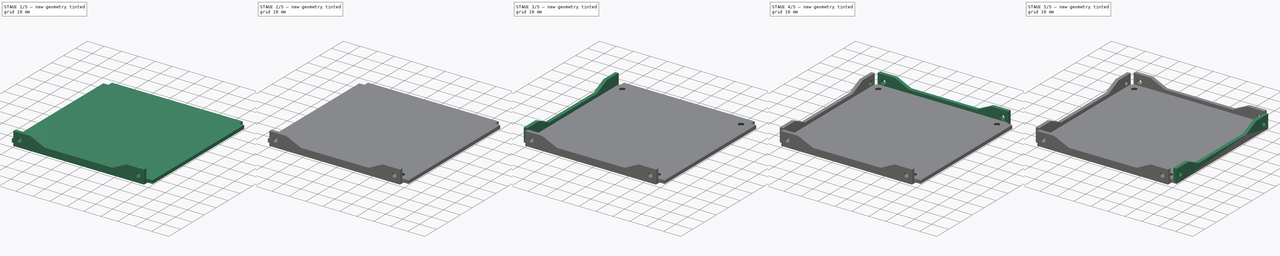
[diagram: build sequence overview — one tinted view per stage of 5, left to right]
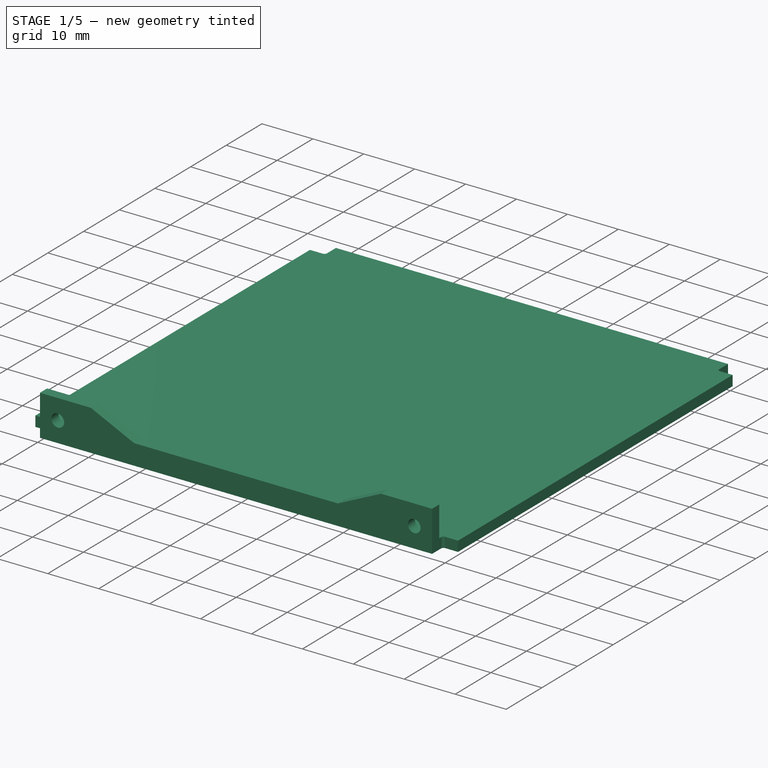
[diagram: stage 1 of 5 — iso view after this stage's code; geometry added in this stage tinted green]
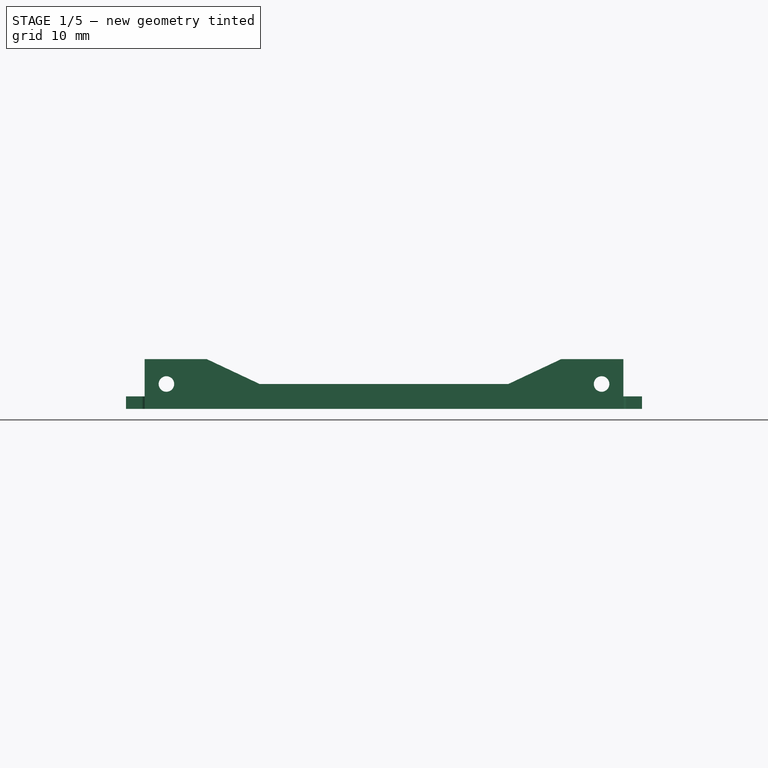
[diagram: stage 1 of 5 — front view after this stage's code; geometry added in this stage tinted green]
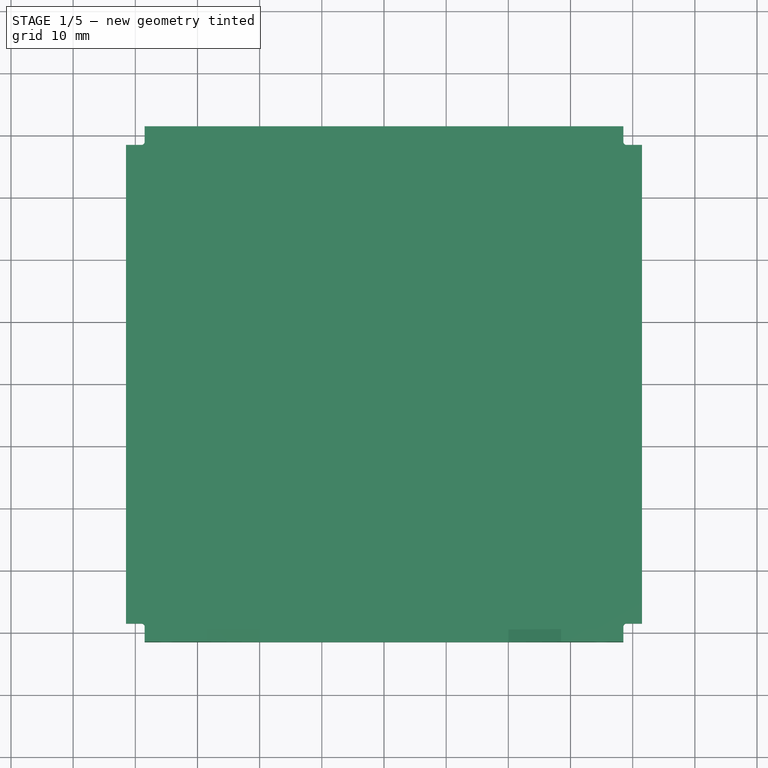
[diagram: stage 1 of 5 — top view after this stage's code; geometry added in this stage tinted green]
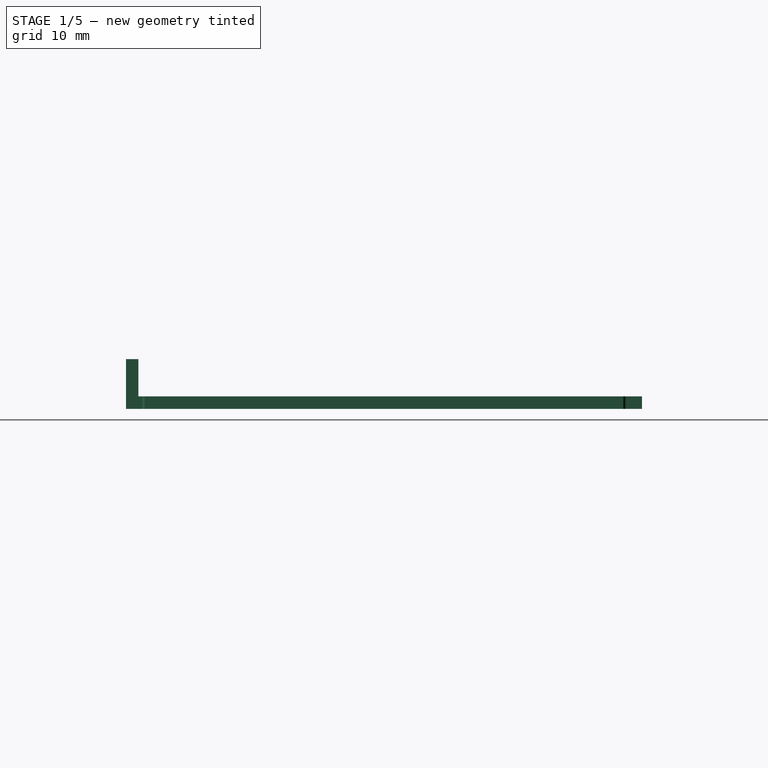
[diagram: stage 1 of 5 — right view after this stage's code; geometry added in this stage tinted green]
FCSTD DOCUMENT  (FreeCAD 0.16R6710 (Git))
Label: tapa2
License: All rights reserved
LicenseURL: http://en.wikipedia.org/wiki/All_rights_reserved
objects: Sketcher::SketchObject×17, PartDesign::Pad×5, Part::Loft×4, Part::Cut×4, PartDesign::Pocket×4, Part::MultiFuse×4
note: 47 computed .brp shape members not serialized (recipe doc carries the construction recipe); baked Part::Feature solids carry a one-line shape summary decoded from their .brp

FEATURE [Sketcher::SketchObject] Sketch
  sketch-geometry (16):
    g0: LineSegment StartX=-41.5 StartY=-38.5 StartZ=0 EndX=-41.5 EndY=38.5 EndZ=0
    g1: LineSegment StartX=-38.5 StartY=-41.5 StartZ=0 EndX=38.5 EndY=-41.5 EndZ=0
    g2: LineSegment StartX=-38.5 StartY=41.5 StartZ=0 EndX=38.5 EndY=41.5 EndZ=0
    g3: LineSegment StartX=41.5 StartY=38.5 StartZ=0 EndX=41.5 EndY=-38.5 EndZ=0
    g4: ArcOfCircle CenterX=-39 CenterY=39 CenterZ=0 NormalX=0 NormalY=0 NormalZ=1 Radius=0.5 StartAngle=4.71507 EndAngle=6.28318
    g5: LineSegment StartX=-38.5 StartY=39 StartZ=0 EndX=-38.5 EndY=41.5 EndZ=0
    g6: LineSegment StartX=-38.9987 StartY=38.5 StartZ=0 EndX=-41.5 EndY=38.5 EndZ=0
    g7: ArcOfCircle CenterX=39 CenterY=39 CenterZ=0 NormalX=0 NormalY=0 NormalZ=1 Radius=0.5 StartAngle=3.14159 EndAngle=4.70971
    g8: LineSegment StartX=38.5 StartY=41.5 StartZ=0 EndX=38.5 EndY=39 EndZ=0
    g9: LineSegment StartX=38.9987 StartY=38.5 StartZ=0 EndX=41.5 EndY=38.5 EndZ=0
    g10: ArcOfCircle CenterX=-39 CenterY=-38.9986 CenterZ=0 NormalX=0 NormalY=0 NormalZ=1 Radius=0.5 StartAngle=6.28296 EndAngle=7.78022
    g11: LineSegment StartX=-38.9632 StartY=-38.5 StartZ=0 EndX=-41.5 EndY=-38.5 EndZ=0
    g12: LineSegment StartX=-38.5 StartY=-38.9988 StartZ=0 EndX=-38.5 EndY=-41.5 EndZ=0
    g13: ArcOfCircle CenterX=39 CenterY=-39 CenterZ=0 NormalX=0 NormalY=0 NormalZ=1 Radius=0.5 StartAngle=1.5708 EndAngle=3.14159
    g14: LineSegment StartX=39 StartY=-38.5 StartZ=0 EndX=41.5 EndY=-38.5 EndZ=0
    g15: LineSegment StartX=38.5 StartY=-39 StartZ=0 EndX=38.5 EndY=-41.5 EndZ=0
  constraints (48):
    c: Radius(g4) = 0.5
    c: Vertical(g5)
    c: Horizontal(g6)
    c: Coincident(g4,g6)
    c: Coincident(g4,g5)
    c: Radius(g7) = 0.5
    c: Vertical(g8)
    c: Horizontal(g9)
    c: Coincident(g7,g8)
    c: Coincident(g7,g9)
    c: Coincident(g2,g8)
    c: Coincident(g5,g2)
    c: DistanceX(g2,g2) = 77
    c: Radius(g10) = 0.5
    c: Horizontal(g11)
    c: Vertical(g12)
    c: Coincident(g10,g12)
    c: Coincident(g10,g11)
    c: Coincident(g0,g11)
    c: DistanceX(g6,g2) = 3
    c: DistanceY(g6,g2) = 3
    c: DistanceY(g12,g0) = 3
    c: Coincident(g0,g6)
    c: DistanceY(g0,g0) = 77
    c: DistanceX(g0,g12) = 3
    c: Coincident(g3,g9)
    c: DistanceX(g2,g3) = 3
    c: DistanceY(g3,g2) = 3
    c: Coincident(g12,g1)
    c: DistanceX(g1,g1) = 77
    c: DistanceY(g3,g3) = 77
    c: Symmetric(g1,g2,g-1)
    c: Symmetric(g3,g3,g-1)
    c: Symmetric(g2,g1,g-1)
    c: Symmetric(g0,g0,g-1)
    c: Symmetric(g1,g1,g-2)
    c: Symmetric(g0,g3,g-2)
    c: Symmetric(g0,g3,g-2)
    c: Symmetric(g2,g2,g-2)
    c: Radius(g13) = 0.5
    c: Horizontal(g14)
    c: Vertical(g15)
    c: Coincident(g14,g3)
    c: Coincident(g15,g1)
    c: Coincident(g13,g14)
    c: Coincident(g13,g15)
    c: DistanceX(g1,g3) = 3
    c: DistanceY(g1,g3) = 3
FEATURE [PartDesign::Pad] Pad
  Length = 2
  Length2 = 100
  Sketch = -> Sketch
  Type = 0
FEATURE [Sketcher::SketchObject] Sketch001
  sketch-geometry (1):
    g0: Circle CenterX=-35 CenterY=-35 CenterZ=0 NormalX=0 NormalY=0 NormalZ=1 Radius=3
  constraints (1):
    c: Radius(g0) = 3
FEATURE [Sketcher::SketchObject] Sketch002
  Placement = pos=(0,0,2) rot=(0,0,1;0rad)
  sketch-geometry (1):
    g0: Circle CenterX=-35 CenterY=-35 CenterZ=0 NormalX=0 NormalY=0 NormalZ=1 Radius=1.5
  constraints (3):
    c: Radius(g0) = 1.5
    c: DistanceY(g0,g-1) = 35
    c: DistanceX(g0,g-1) = 35
FEATURE [Part::Loft] Loft
  Closed = false
  Ruled = true
  Sections = -> [Sketch001,Sketch002]
  Solid = true
FEATURE [PartDesign::Pad] Pad001
  Length = 2
  Length2 = 100
  Placement = pos=(0,-39.5,0) rot=(-1,0,0;4.71239rad)
  Sketch = -> Sketch009
  Type = 0
FEATURE [Sketcher::SketchObject] Sketch017
  Placement = pos=(0,-41.5,0) rot=(1,0,0;1.5708rad)
  Support = -> Pad001 [Face10]
  sketch-geometry (2):
    g0: Circle CenterX=-35 CenterY=4 CenterZ=0 NormalX=0 NormalY=0 NormalZ=1 Radius=1.25
    g1: Circle CenterX=35 CenterY=4 CenterZ=0 NormalX=0 NormalY=0 NormalZ=1 Radius=1.25
  constraints (5):
    c: Equal(g1,g0)
    c: Radius(g1) = 1.25
    c: Symmetric(g0,g1,g-2)
    c: DistanceX(g0,g-1) = 35
    c: DistanceY(g-1,g0) = 4
FEATURE [PartDesign::Pocket] Pocket
  Length = 5
  Placement = pos=(0,-39.5,0) rot=(-1,0,0;4.71239rad)
  Sketch = -> Sketch017
  Type = 1
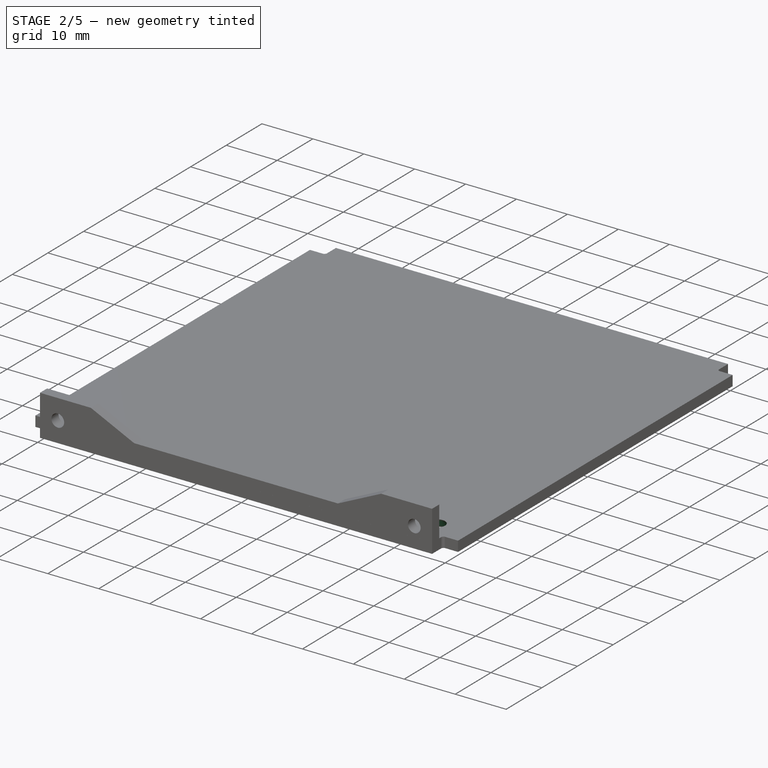
[diagram: stage 2 of 5 — iso view after this stage's code; geometry added in this stage tinted green]
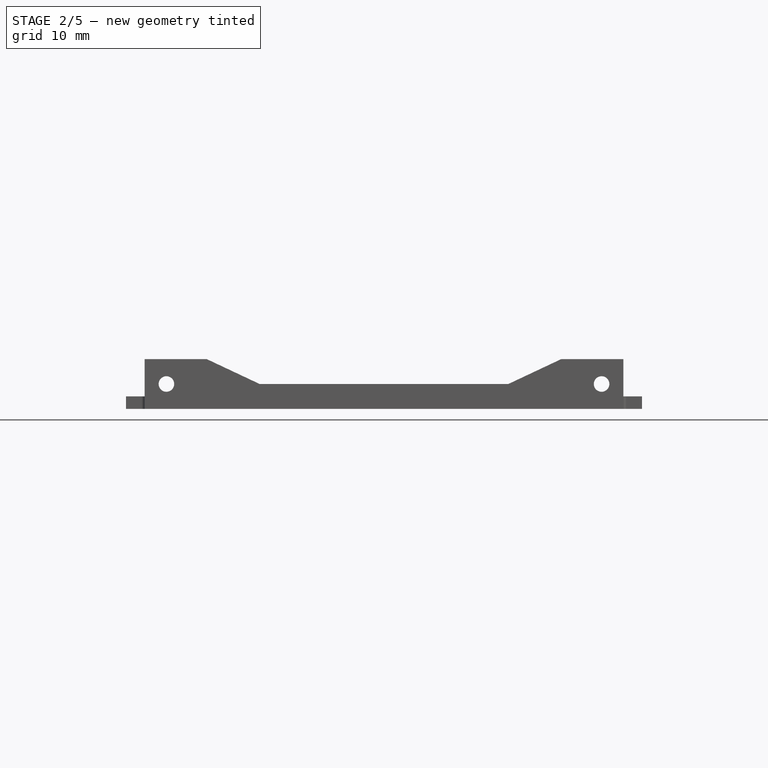
[diagram: stage 2 of 5 — front view after this stage's code; geometry added in this stage tinted green]
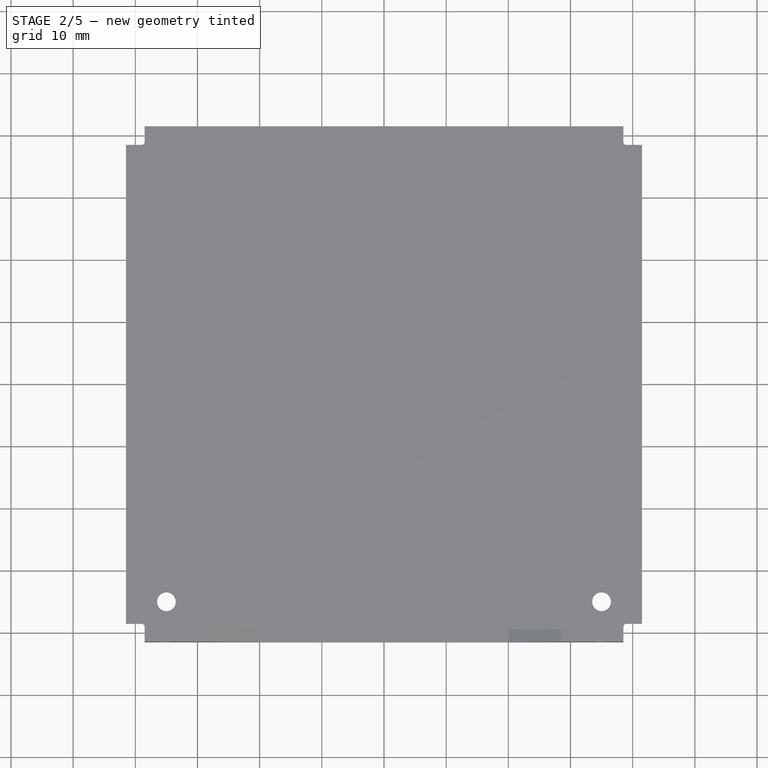
[diagram: stage 2 of 5 — top view after this stage's code; geometry added in this stage tinted green]
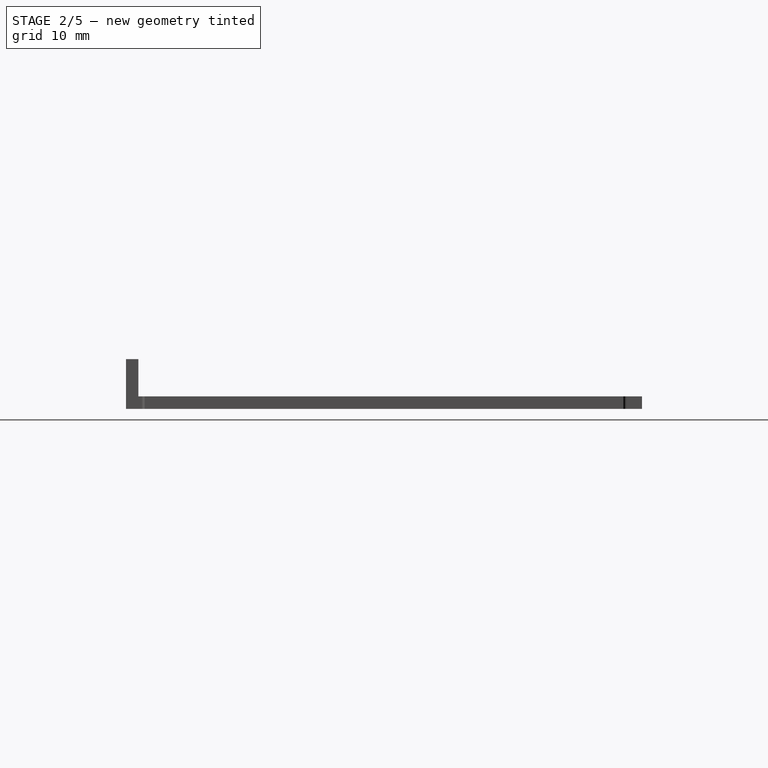
[diagram: stage 2 of 5 — right view after this stage's code; geometry added in this stage tinted green]
FEATURE [Sketcher::SketchObject] Sketch003
  sketch-geometry (1):
    g0: Circle CenterX=35 CenterY=-35 CenterZ=0 NormalX=0 NormalY=0 NormalZ=1 Radius=3
  constraints (3):
    c: Radius(g0) = 3
    c: DistanceX(g-1,g0) = 35
    c: DistanceY(g0,g-1) = 35
FEATURE [Sketcher::SketchObject] Sketch004
  Placement = pos=(0,0,2) rot=(0,0,1;0rad)
  sketch-geometry (1):
    g0: Circle CenterX=35 CenterY=-35 CenterZ=0 NormalX=0 NormalY=0 NormalZ=1 Radius=1.5
  constraints (3):
    c: Radius(g0) = 1.5
    c: DistanceX(g-1,g0) = 35
    c: DistanceY(g0,g-1) = 35
FEATURE [Part::Loft] Loft001
  Closed = false
  Ruled = true
  Sections = -> [Sketch003,Sketch004]
  Solid = true
FEATURE [Sketcher::SketchObject] Sketch005
  sketch-geometry (1):
    g0: Circle CenterX=-35 CenterY=35 CenterZ=0 NormalX=0 NormalY=0 NormalZ=1 Radius=3
  constraints (3):
    c: Radius(g0) = 3
    c: DistanceY(g-1,g0) = 35
    c: DistanceX(g0,g-1) = 35
FEATURE [Sketcher::SketchObject] Sketch006
  Placement = pos=(0,0,2) rot=(0,0,1;0rad)
  sketch-geometry (1):
    g0: Circle CenterX=-35 CenterY=35 CenterZ=0 NormalX=0 NormalY=0 NormalZ=1 Radius=1.5
  constraints (3):
    c: Radius(g0) = 1.5
    c: DistanceY(g-1,g0) = 35
    c: DistanceX(g0,g-1) = 35
FEATURE [Part::Loft] Loft002
  Closed = false
  Ruled = true
  Sections = -> [Sketch005,Sketch006]
  Solid = true
FEATURE [Sketcher::SketchObject] Sketch009
  Placement = pos=(0,-39.5,0) rot=(-1,0,0;4.71239rad)
  sketch-geometry (9):
    g0: LineSegment StartX=-38.5 StartY=-1.549e-08 StartZ=0 EndX=38.5 EndY=-1.549e-08 EndZ=0
    g1: LineSegment StartX=38.5 StartY=-1.549e-08 StartZ=0 EndX=38.5 EndY=8 EndZ=0
    g2: LineSegment StartX=-38.5 StartY=7.99991 StartZ=0 EndX=-38.5 EndY=8 EndZ=0
    g3: LineSegment StartX=-38.5 StartY=8 StartZ=0 EndX=-38.5 EndY=-1.549e-08 EndZ=0
    g4: LineSegment StartX=38.5 StartY=8 StartZ=0 EndX=28.5 EndY=8 EndZ=0
    g5: LineSegment StartX=28.5 StartY=8 StartZ=0 EndX=20 EndY=4 EndZ=0
    g6: LineSegment StartX=20 StartY=4 StartZ=0 EndX=-20 EndY=4 EndZ=0
    g7: LineSegment StartX=-20 StartY=4 StartZ=0 EndX=-28.5 EndY=7.99991 EndZ=0
    g8: LineSegment StartX=-28.5 StartY=7.99991 StartZ=0 EndX=-38.5 EndY=7.99991 EndZ=0
  constraints (26):
    c: Horizontal(g0)
    c: Coincident(g0,g1)
    c: Vertical(g1)
    c: Coincident(g2,g3)
    c: Coincident(g3,g0)
    c: Vertical(g3)
    c: Equal(g3,g1)
    c: DistanceY(g0,g1) = 8
    c: Symmetric(g0,g0,g-2)
    c: PointOnObject(g0,g-1)
    c: DistanceX(g-1,g0) = 38.5
    c: Symmetric(g2,g1,g-2)
    c: Coincident(g1,g4)
    c: Horizontal(g4)
    c: Coincident(g4,g5)
    c: Coincident(g5,g6)
    c: Horizontal(g6)
    c: Coincident(g6,g7)
    c: Coincident(g7,g8)
    c: Coincident(g8,g2)
    c: Horizontal(g8)
    c: Symmetric(g5,g6,g-2)
    c: Symmetric(g4,g7,g-2)
    c: DistanceX(g4,g4) = 10
    c: DistanceX(g-1,g5) = 20
    c: DistanceY(g-1,g5) = 4
FEATURE [Sketcher::SketchObject] Sketch010
  Placement = pos=(0,41.5,0) rot=(1,0,0;1.5708rad)
  sketch-geometry (8):
    g0: LineSegment StartX=-38.5 StartY=0 StartZ=0 EndX=38.5 EndY=0 EndZ=0
    g1: LineSegment StartX=38.5 StartY=0 StartZ=0 EndX=38.5 EndY=8 EndZ=0
    g2: LineSegment StartX=-38.5 StartY=8 StartZ=0 EndX=-38.5 EndY=0 EndZ=0
    g3: LineSegment StartX=38.5 StartY=8 StartZ=0 EndX=28.5 EndY=8 EndZ=0
    g4: LineSegment StartX=28.5 StartY=8 StartZ=0 EndX=20 EndY=4 EndZ=0
    g5: LineSegment StartX=20 StartY=4 StartZ=0 EndX=-20 EndY=4 EndZ=0
    g6: LineSegment StartX=-20 StartY=4 StartZ=0 EndX=-28.5 EndY=8 EndZ=0
    g7: LineSegment StartX=-28.5 StartY=8 StartZ=0 EndX=-38.5 EndY=8 EndZ=0
  constraints (23):
    c: Coincident(g0,g1)
    c: Vertical(g1)
    c: Coincident(g2,g0)
    c: Vertical(g2)
    c: Equal(g2,g1)
    c: Symmetric(g0,g0,g-2)
    c: PointOnObject(g0,g-1)
    c: Coincident(g1,g3)
    c: Horizontal(g3)
    c: Coincident(g3,g4)
    c: Coincident(g4,g5)
    c: Horizontal(g5)
    c: Coincident(g5,g6)
    c: Coincident(g6,g7)
    c: Coincident(g7,g2)
    c: Horizontal(g7)
    c: Symmetric(g3,g6,g-2)
    c: Symmetric(g4,g5,g-2)
    c: DistanceX(g-1,g0) = 38.5
    c: DistanceY(g0,g1) = 8
    c: DistanceX(g-1,g4) = 20
    c: DistanceX(g3,g3) = 10
    c: DistanceY(g-1,g4) = 4
FEATURE [Sketcher::SketchObject] Sketch011
  Placement = pos=(39.5,0,0) rot=(0.57735,0.57735,0.57735;2.0944rad)
  sketch-geometry (8):
    g0: LineSegment StartX=-38.5 StartY=0 StartZ=0 EndX=38.5 EndY=0 EndZ=0
    g1: LineSegment StartX=38.5 StartY=0 StartZ=0 EndX=38.5 EndY=8 EndZ=0
    g2: LineSegment StartX=-38.5 StartY=8 StartZ=0 EndX=-38.5 EndY=0 EndZ=0
    g3: LineSegment StartX=38.5 StartY=8 StartZ=0 EndX=28.5 EndY=8 EndZ=0
    g4: LineSegment StartX=28.5 StartY=8 StartZ=0 EndX=20 EndY=4 EndZ=0
    g5: LineSegment StartX=20 StartY=4 StartZ=0 EndX=-20 EndY=4 EndZ=0
    g6: LineSegment StartX=-20 StartY=4 StartZ=0 EndX=-28.5 EndY=8 EndZ=0
    g7: LineSegment StartX=-28.5 StartY=8 StartZ=0 EndX=-38.5 EndY=8 EndZ=0
  constraints (23):
    c: Coincident(g0,g1)
    c: Vertical(g1)
    c: Coincident(g2,g0)
    c: Vertical(g2)
    c: Equal(g1,g2)
    c: Symmetric(g0,g0,g-2)
    c: PointOnObject(g0,g-1)
    c: Coincident(g1,g3)
    c: Horizontal(g3)
    c: Coincident(g3,g4)
    c: Coincident(g4,g5)
    c: Horizontal(g5)
    c: Coincident(g5,g6)
    c: Coincident(g6,g7)
    c: Coincident(g7,g2)
    c: Horizontal(g7)
    c: Symmetric(g3,g6,g-2)
    c: Symmetric(g4,g5,g-2)
    c: DistanceX(g-1,g0) = 38.5
    c: DistanceY(g0,g1) = 8
    c: DistanceY(g-1,g4) = 4
    c: DistanceX(g3,g3) = 10
    c: DistanceX(g-1,g4) = 20
FEATURE [Sketcher::SketchObject] Sketch012
  Placement = pos=(-41.5,0,0) rot=(0.57735,0.57735,0.57735;2.0944rad)
  sketch-geometry (8):
    g0: LineSegment StartX=-38.5 StartY=0 StartZ=0 EndX=38.5 EndY=0 EndZ=0
    g1: LineSegment StartX=38.5 StartY=0 StartZ=0 EndX=38.5 EndY=8 EndZ=0
    g2: LineSegment StartX=-38.5 StartY=8 StartZ=0 EndX=-38.5 EndY=0 EndZ=0
    g3: LineSegment StartX=38.5 StartY=8 StartZ=0 EndX=28.5 EndY=8 EndZ=0
    g4: LineSegment StartX=28.5 StartY=8 StartZ=0 EndX=20 EndY=4 EndZ=0
    g5: LineSegment StartX=20 StartY=4 StartZ=0 EndX=-20 EndY=4 EndZ=0
    g6: LineSegment StartX=-20 StartY=4 StartZ=0 EndX=-28.5 EndY=8 EndZ=0
    g7: LineSegment StartX=-28.5 StartY=8 StartZ=0 EndX=-38.5 EndY=8 EndZ=0
  constraints (23):
    c: Coincident(g0,g1)
    c: Vertical(g1)
    c: Coincident(g2,g0)
    c: Vertical(g2)
    c: Equal(g1,g2)
    c: Symmetric(g0,g0,g-2)
    c: PointOnObject(g0,g-1)
    c: Coincident(g1,g3)
    c: Horizontal(g3)
    c: Coincident(g3,g4)
    c: Coincident(g4,g5)
    c: Horizontal(g5)
    c: Coincident(g5,g6)
    c: Coincident(g6,g7)
    c: Horizontal(g7)
    c: Coincident(g7,g2)
    c: Symmetric(g3,g6,g-2)
    c: Symmetric(g4,g5,g-2)
    c: DistanceX(g-1,g0) = 38.5
    c: DistanceY(g0,g1) = 8
    c: DistanceX(g3,g1) = 10
    c: DistanceX(g-1,g4) = 20
    c: DistanceY(g-1,g4) = 4
FEATURE [Part::Cut] Cut
  Base = -> Pad
  Tool = -> Loft
FEATURE [Part::Cut] Cut001
  Base = -> Cut
  Tool = -> Loft001
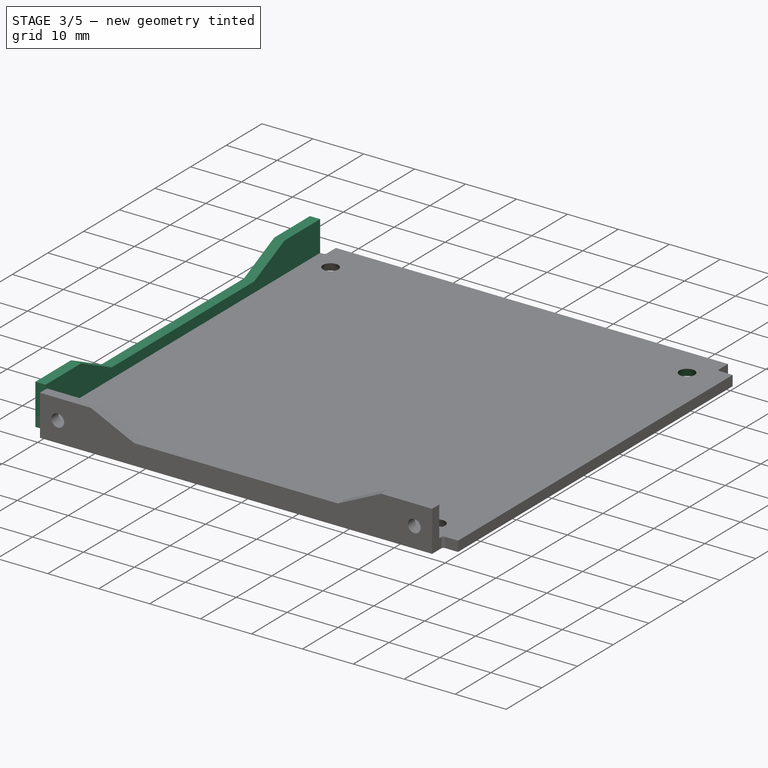
[diagram: stage 3 of 5 — iso view after this stage's code; geometry added in this stage tinted green]
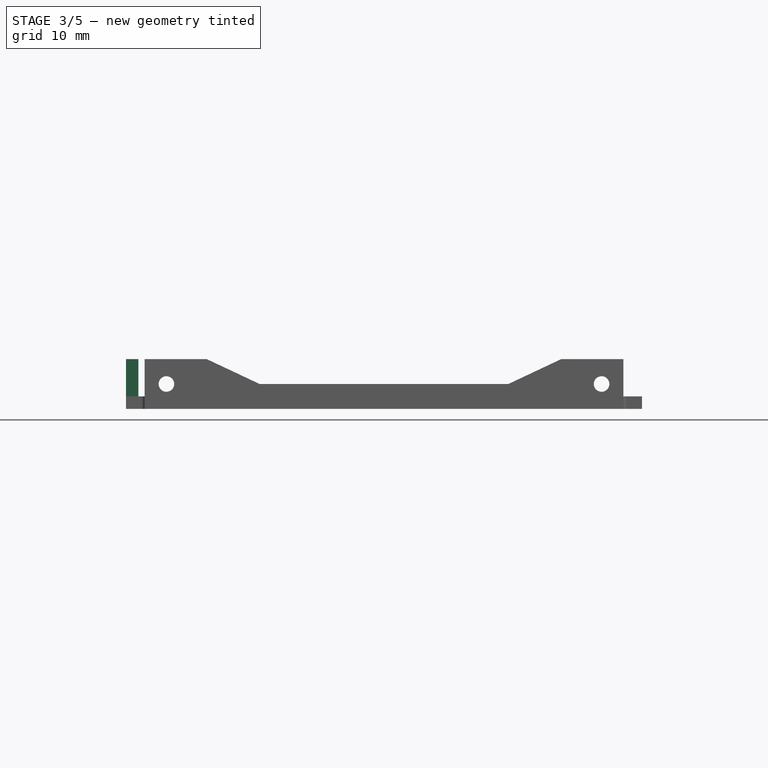
[diagram: stage 3 of 5 — front view after this stage's code; geometry added in this stage tinted green]
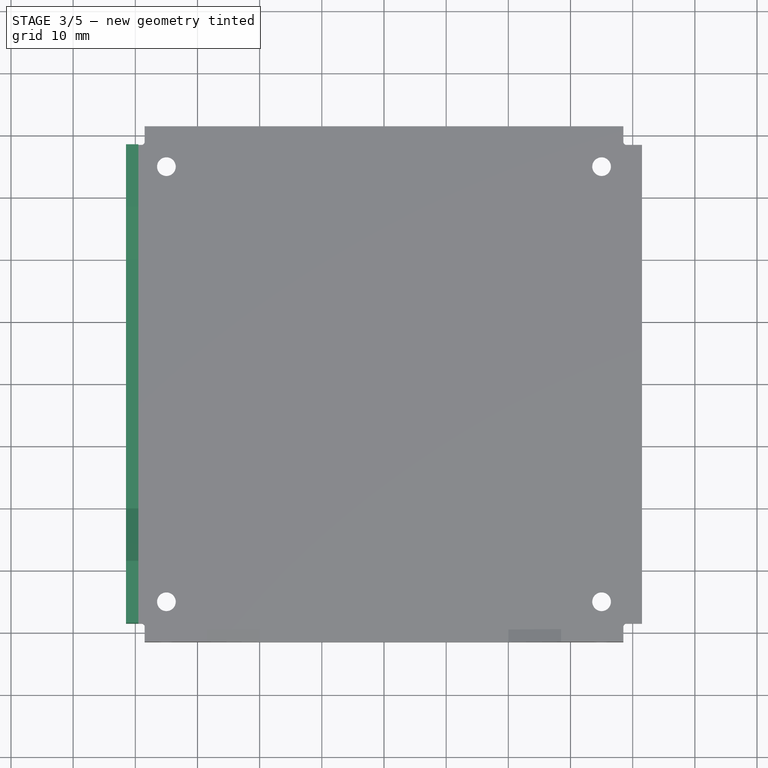
[diagram: stage 3 of 5 — top view after this stage's code; geometry added in this stage tinted green]
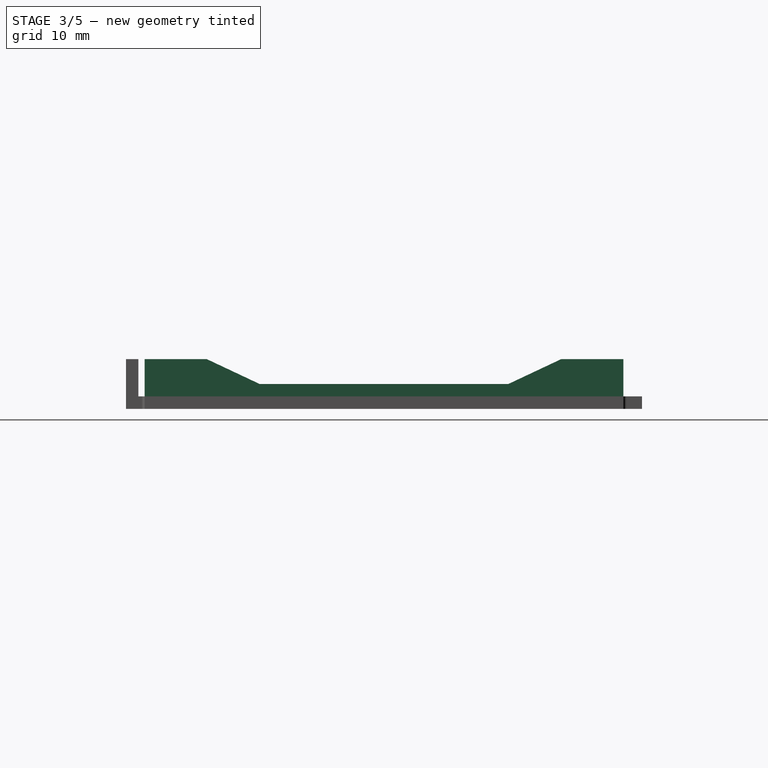
[diagram: stage 3 of 5 — right view after this stage's code; geometry added in this stage tinted green]
FEATURE [Sketcher::SketchObject] Sketch007
  sketch-geometry (1):
    g0: Circle CenterX=35 CenterY=35 CenterZ=0 NormalX=0 NormalY=0 NormalZ=1 Radius=3
  constraints (3):
    c: Radius(g0) = 3
    c: DistanceY(g-1,g0) = 35
    c: DistanceX(g-1,g0) = 35
FEATURE [Sketcher::SketchObject] Sketch008
  Placement = pos=(0,0,2) rot=(0,0,1;0rad)
  sketch-geometry (1):
    g0: Circle CenterX=35 CenterY=35 CenterZ=0 NormalX=0 NormalY=0 NormalZ=1 Radius=1.5
  constraints (3):
    c: Radius(g0) = 1.5
    c: DistanceX(g-1,g0) = 35
    c: DistanceY(g-1,g0) = 35
FEATURE [Part::Loft] Loft003
  Closed = false
  Ruled = true
  Sections = -> [Sketch007,Sketch008]
  Solid = true
FEATURE [Part::Cut] Cut002
  Base = -> Cut001
  Tool = -> Loft002
FEATURE [Part::Cut] Cut003
  Base = -> Cut002
  Tool = -> Loft003
FEATURE [PartDesign::Pad] Pad002
  Length = 2
  Length2 = 100
  Placement = pos=(-41.5,0,0) rot=(0.57735,0.57735,0.57735;2.0944rad)
  Sketch = -> Sketch012
  Type = 0
FEATURE [Part::MultiFuse] Fusion
  Shapes = -> [Cut003,Pocket]
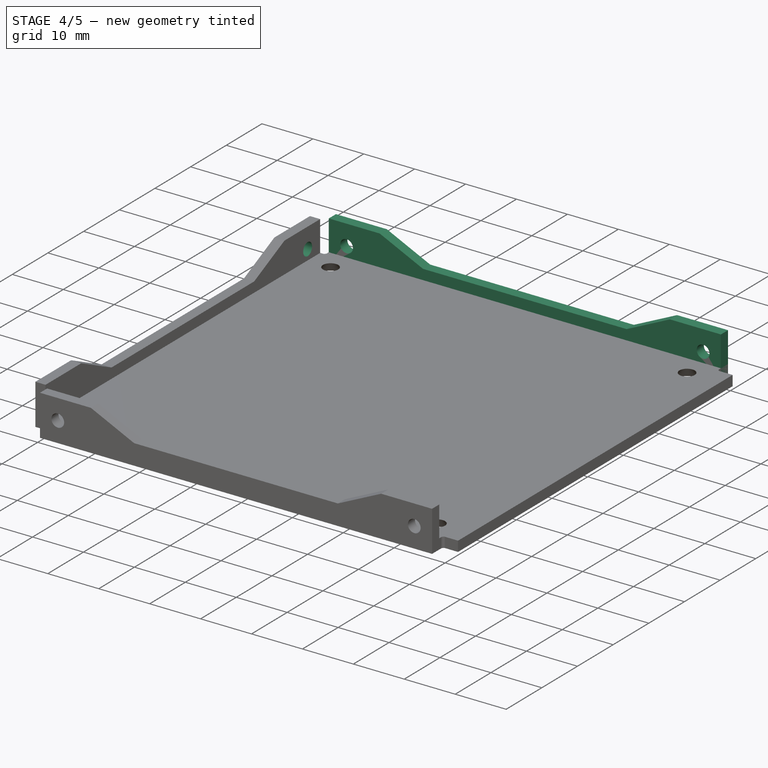
[diagram: stage 4 of 5 — iso view after this stage's code; geometry added in this stage tinted green]
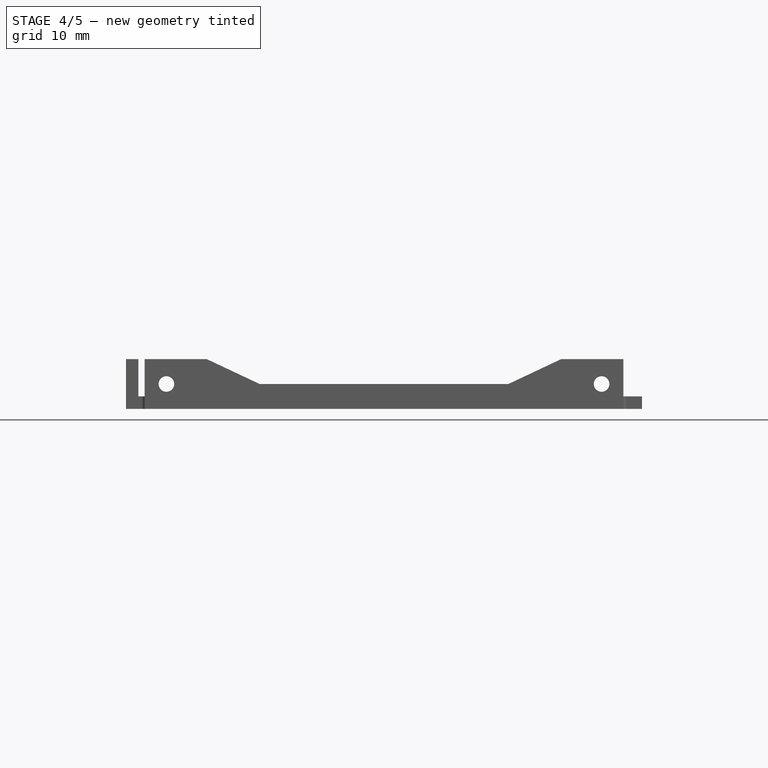
[diagram: stage 4 of 5 — front view after this stage's code; geometry added in this stage tinted green]
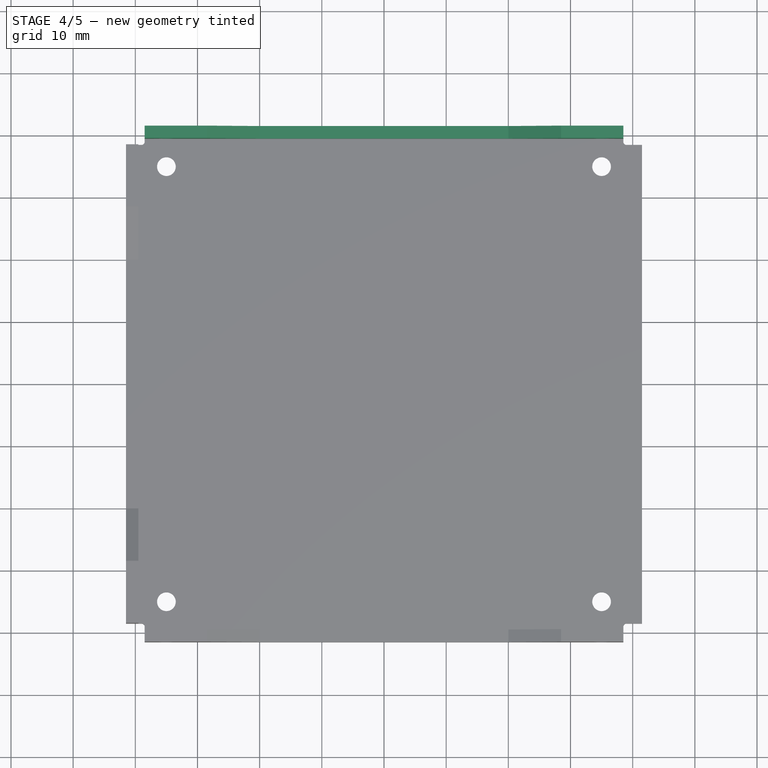
[diagram: stage 4 of 5 — top view after this stage's code; geometry added in this stage tinted green]
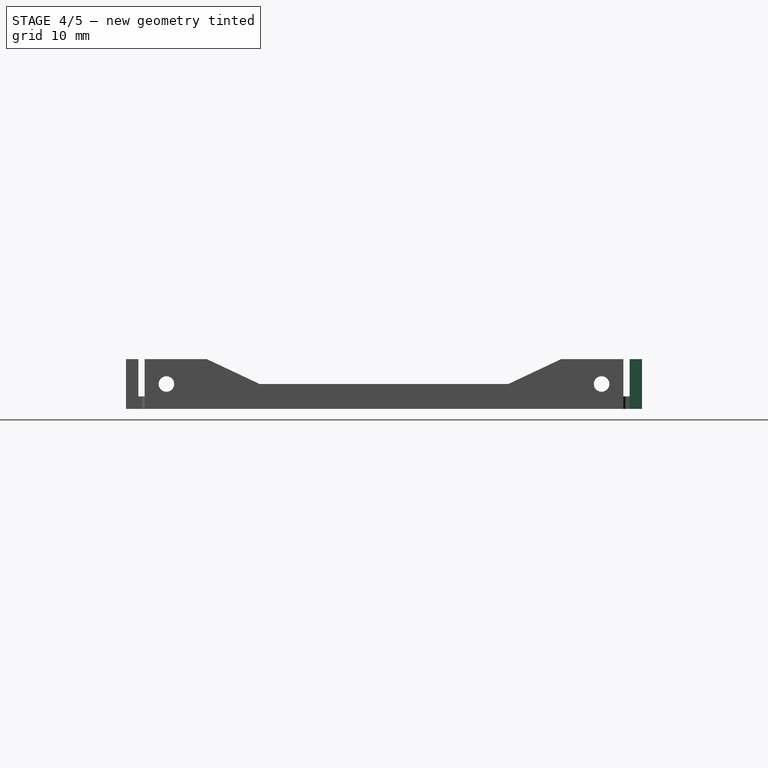
[diagram: stage 4 of 5 — right view after this stage's code; geometry added in this stage tinted green]
FEATURE [PartDesign::Pad] Pad004
  Length = 2
  Length2 = 100
  Placement = pos=(0,41.5,0) rot=(1,0,0;1.5708rad)
  Sketch = -> Sketch010
  Type = 0
FEATURE [Sketcher::SketchObject] Sketch015
  Placement = pos=(-39.5,0,0) rot=(0.57735,0.57735,0.57735;2.0944rad)
  Support = -> Pad002 [Face10]
  sketch-geometry (2):
    g0: Circle CenterX=-35 CenterY=4 CenterZ=0 NormalX=0 NormalY=0 NormalZ=1 Radius=1.25
    g1: Circle CenterX=35 CenterY=4 CenterZ=0 NormalX=0 NormalY=0 NormalZ=1 Radius=1.25
  constraints (5):
    c: Equal(g1,g0)
    c: Radius(g1) = 1.25
    c: Symmetric(g1,g0,g-2)
    c: DistanceX(g0,g-1) = 35
    c: DistanceY(g-1,g0) = 4
FEATURE [PartDesign::Pocket] Pocket002
  Length = 5
  Placement = pos=(-41.5,0,0) rot=(0.57735,0.57735,0.57735;2.0944rad)
  Sketch = -> Sketch015
  Type = 1
FEATURE [Sketcher::SketchObject] Sketch016
  Placement = pos=(0,39.5,0) rot=(1,0,0;1.5708rad)
  Support = -> Pad004 [Face10]
  sketch-geometry (2):
    g0: Circle CenterX=-35 CenterY=4 CenterZ=0 NormalX=0 NormalY=0 NormalZ=1 Radius=1.25
    g1: Circle CenterX=35 CenterY=4 CenterZ=0 NormalX=0 NormalY=0 NormalZ=1 Radius=1.25
  constraints (5):
    c: Equal(g0,g1)
    c: Radius(g1) = 1.25
    c: Symmetric(g1,g0,g-2)
    c: DistanceX(g0,g-1) = 35
    c: DistanceY(g-1,g0) = 4
FEATURE [PartDesign::Pocket] Pocket003
  Length = 5
  Placement = pos=(0,41.5,0) rot=(1,0,0;1.5708rad)
  Sketch = -> Sketch016
  Type = 1
FEATURE [Part::MultiFuse] Fusion001
  Shapes = -> [Fusion,Pocket002]
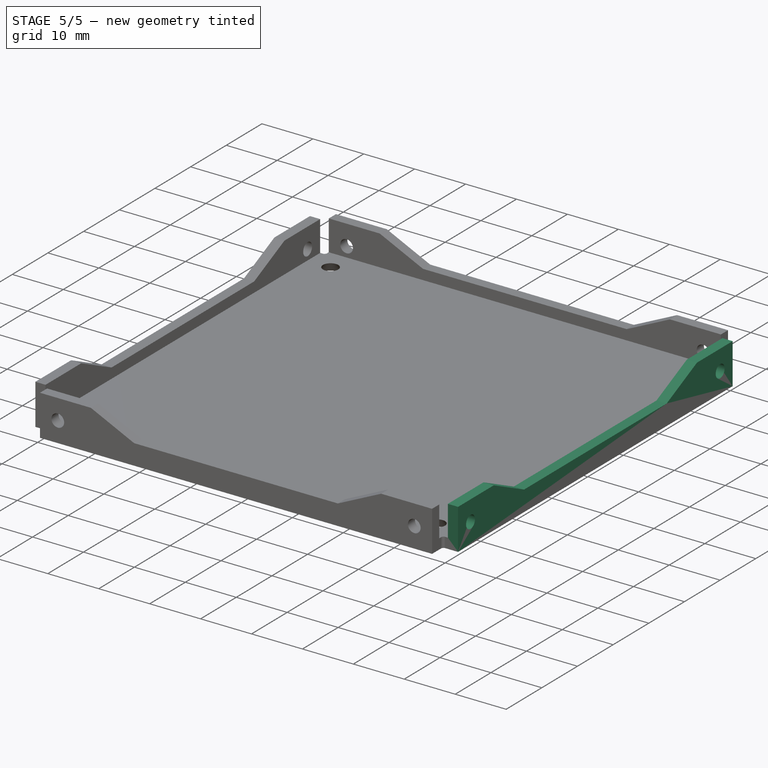
[diagram: stage 5 of 5 — iso view after this stage's code; geometry added in this stage tinted green]
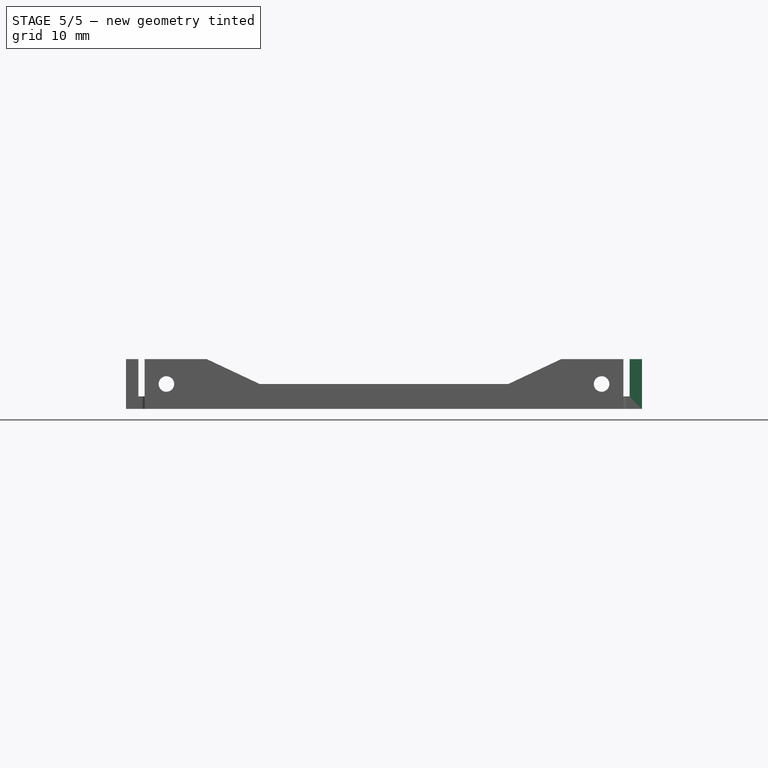
[diagram: stage 5 of 5 — front view after this stage's code; geometry added in this stage tinted green]
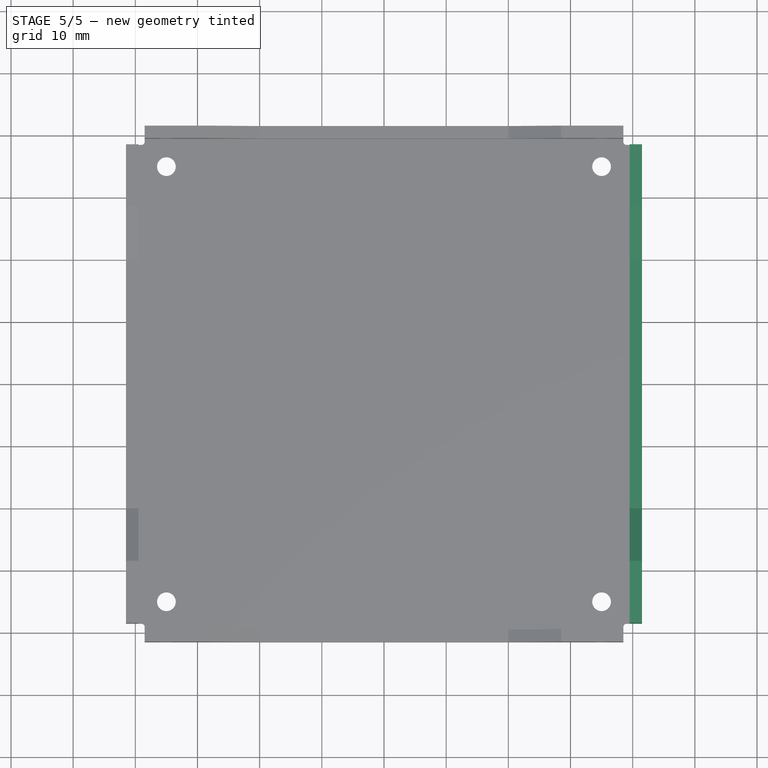
[diagram: stage 5 of 5 — top view after this stage's code; geometry added in this stage tinted green]
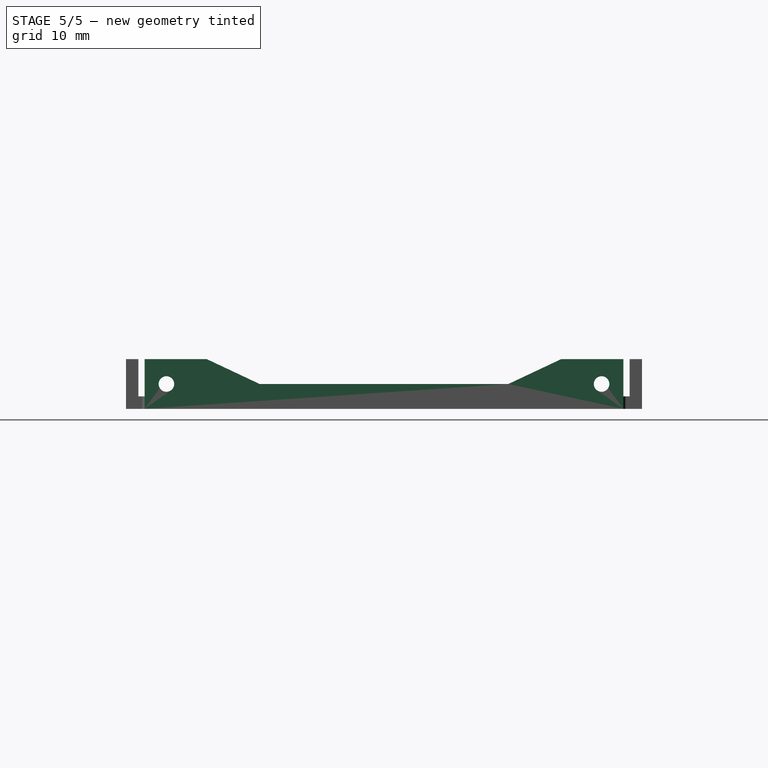
[diagram: stage 5 of 5 — right view after this stage's code; geometry added in this stage tinted green]
FEATURE [PartDesign::Pad] Pad003
  Length = 2
  Length2 = 100
  Placement = pos=(39.5,0,0) rot=(0.57735,0.57735,0.57735;2.0944rad)
  Sketch = -> Sketch011
  Type = 0
FEATURE [Sketcher::SketchObject] Sketch014
  Placement = pos=(41.5,0,0) rot=(0.57735,0.57735,0.57735;2.0944rad)
  Support = -> Pad003 [Face10]
  sketch-geometry (2):
    g0: Circle CenterX=-35 CenterY=4 CenterZ=0 NormalX=0 NormalY=0 NormalZ=1 Radius=1.25
    g1: Circle CenterX=35 CenterY=4 CenterZ=0 NormalX=0 NormalY=0 NormalZ=1 Radius=1.25
  constraints (5):
    c: Equal(g1,g0)
    c: Radius(g1) = 1.25
    c: Symmetric(g0,g1,g-2)
    c: DistanceX(g0,g-1) = 35
    c: DistanceY(g-1,g0) = 4
FEATURE [PartDesign::Pocket] Pocket001
  Length = 5
  Placement = pos=(39.5,0,0) rot=(0.57735,0.57735,0.57735;2.0944rad)
  Sketch = -> Sketch014
  Type = 1
FEATURE [Part::MultiFuse] Fusion002
  Shapes = -> [Fusion001,Pocket003]
FEATURE [Part::MultiFuse] Fusion003
  Shapes = -> [Pocket001,Fusion002]
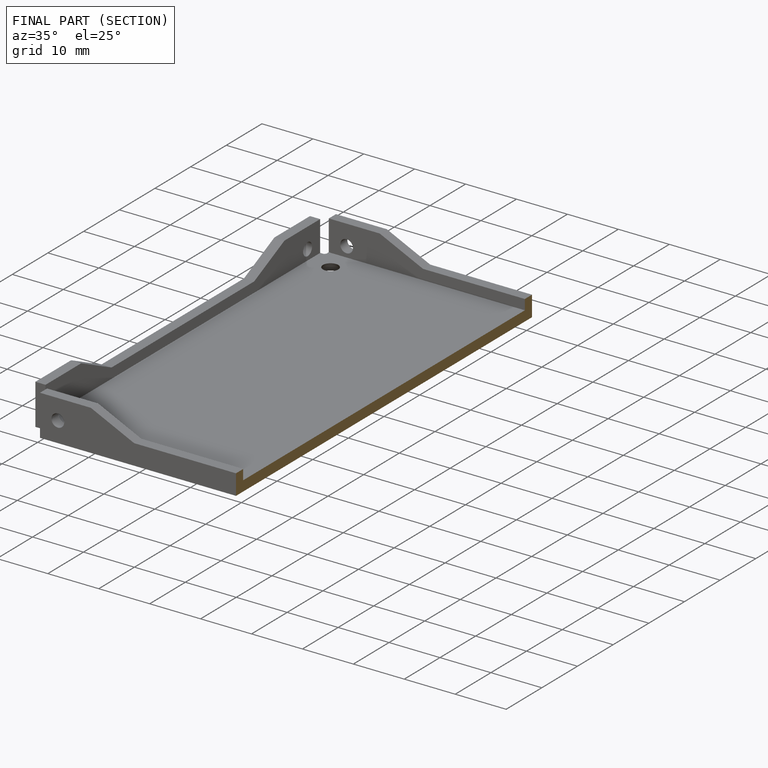
[diagram: finished part — half-section view (interior)]
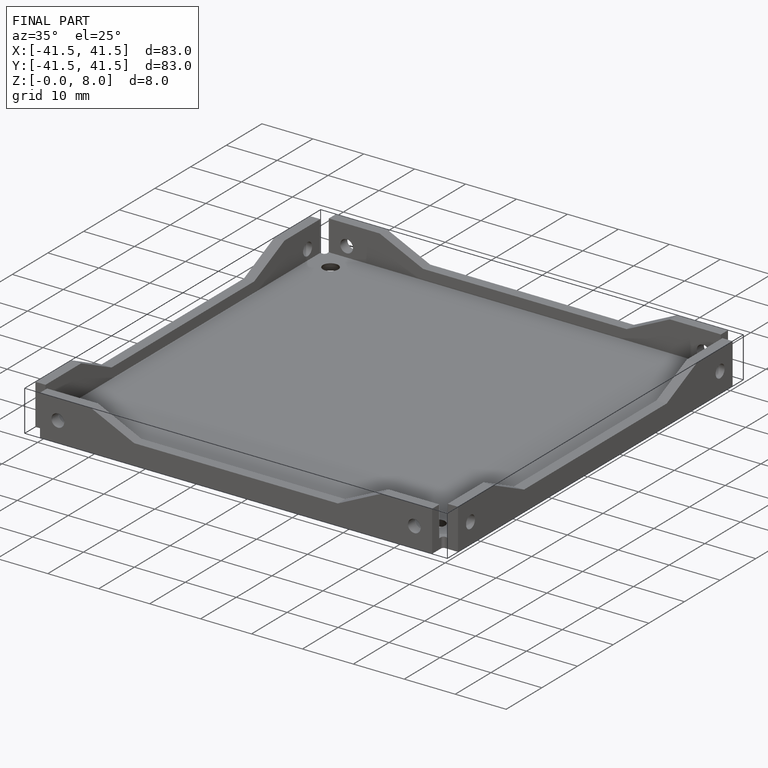
[diagram: finished part — iso view with bounding-box wireframe]
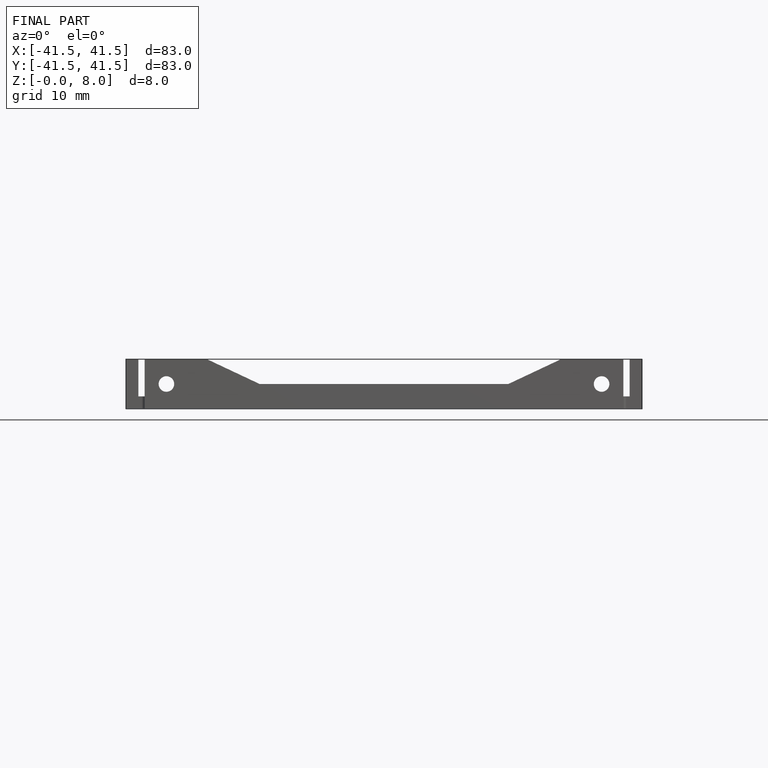
[diagram: finished part — front view with bounding-box wireframe]
